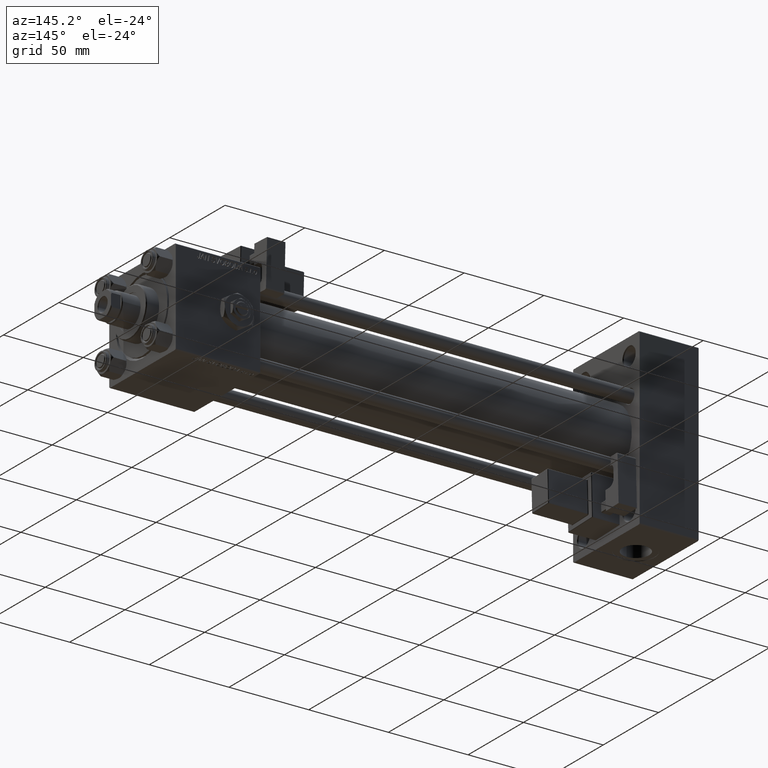
[diagram: clean part render]
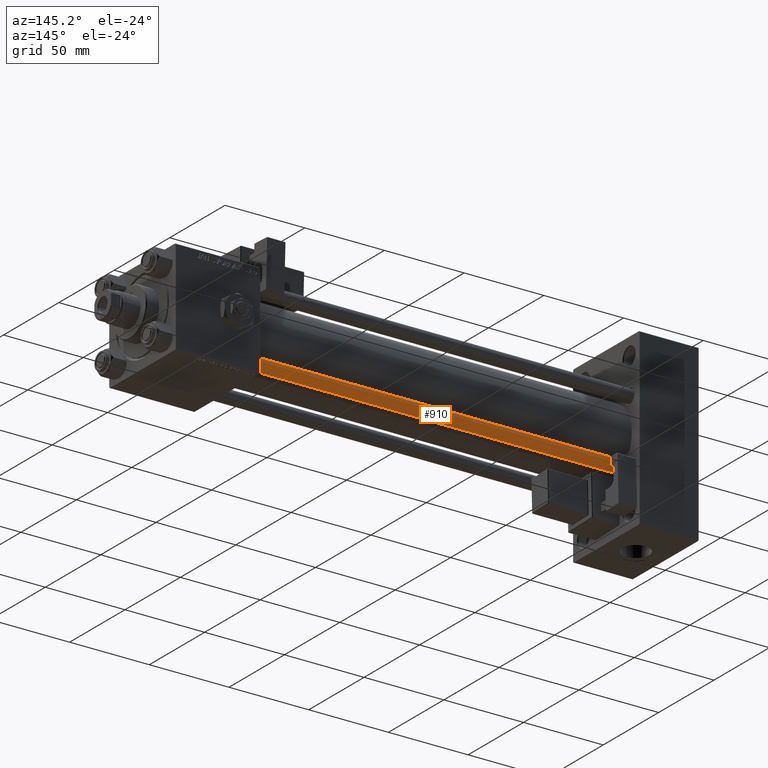
[diagram: same view with one face highlighted and labeled with its STEP entity id]
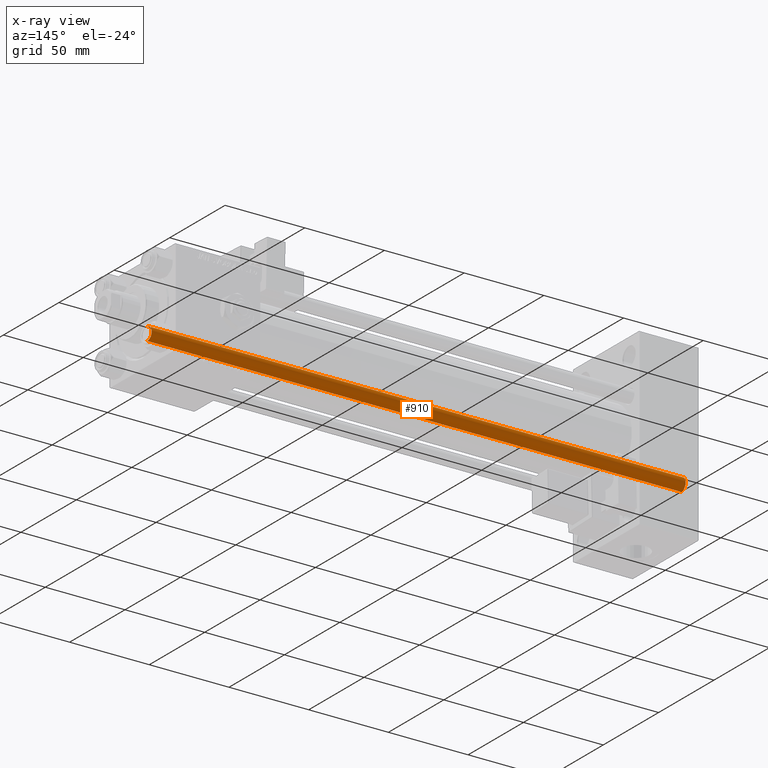
[diagram: x-ray of the same camera — body ghosted, the highlighted face saturated]
A machine part, auxiliary view. The second image highlights one B-rep face of the part: STEP entity #910.
The next image is the same camera in x-ray: the body ghosted, the highlighted face saturated — about 0% of this face is hidden behind the body in this view.
In plain terms, the highlighted cylindrical surface (edge-blend (fillet) strip) has radius 4 mm, axis along (-1, 0, 0).
Its self-contained STEP definition (entity closure, byte-faithful):
#440 = DIRECTION ( 'NONE',  ( -0.000000000000000000, -0.000000000000000000, -1.000000000000000000 ) ) ;
#910 = ADVANCED_FACE ( 'NONE', ( #52350 ), #49873, .T. ) ;
#4340 = EDGE_CURVE ( 'NONE', #36405, #35872, #12436, .T. ) ;
#4458 = CARTESIAN_POINT ( 'NONE',  ( 4.000000000000000000, 4.898587196589411843E-16, 0.5000000000003335110 ) ) ;
#4763 = DIRECTION ( 'NONE',  ( -0.000000000000000000, -0.000000000000000000, -1.000000000000000000 ) ) ;
#5082 = LINE ( 'NONE', #25329, #27484 ) ;
#7553 = DIRECTION ( 'NONE',  ( 1.000000000000000000, 0.000000000000000000, 0.000000000000000000 ) ) ;
#8058 = EDGE_CURVE ( 'NONE', #18956, #29649, #5082, .T. ) ;
#9114 = CARTESIAN_POINT ( 'NONE',  ( -4.000000000000000000, 0.000000000000000000, 336.0000000000000000 ) ) ;
#9689 = CARTESIAN_POINT ( 'NONE',  ( -4.000000000000000000, 0.000000000000000000, 0.5000000000003335110 ) ) ;
#10910 = CARTESIAN_POINT ( 'NONE',  ( -4.000000000000000000, 0.000000000000000000, 335.5000000000001705 ) ) ;
#12343 = EDGE_LOOP ( 'NONE', ( #15547, #47040, #47816, #36677 ) ) ;
#12423 = EDGE_CURVE ( 'NONE', #18956, #36405, #24893, .T. ) ;
#12436 = LINE ( 'NONE', #9114, #23188 ) ;
#12734 = CARTESIAN_POINT ( 'NONE',  ( 0.000000000000000000, 0.000000000000000000, 336.0000000000000000 ) ) ;
#15214 = CARTESIAN_POINT ( 'NONE',  ( 0.000000000000000000, 0.000000000000000000, 335.5000000000001705 ) ) ;
#15547 = ORIENTED_EDGE ( 'NONE', *, *, #8058, .F. ) ;
#16594 = DIRECTION ( 'NONE',  ( -0.000000000000000000, -0.000000000000000000, -1.000000000000000000 ) ) ;
#18956 = VERTEX_POINT ( 'NONE', #46570 ) ;
#23188 = VECTOR ( 'NONE', #4763, 1000.000000000000000 ) ;
#23962 = DIRECTION ( 'NONE',  ( -0.000000000000000000, -0.000000000000000000, 1.000000000000000000 ) ) ;
#24893 = CIRCLE ( 'NONE', #34496, 4.000000000000000000 ) ;
#25329 = CARTESIAN_POINT ( 'NONE',  ( 4.000000000000000000, 4.898587196589411843E-16, 336.0000000000000000 ) ) ;
#27484 = VECTOR ( 'NONE', #16594, 1000.000000000000000 ) ;
#27797 = DIRECTION ( 'NONE',  ( 0.000000000000000000, 0.000000000000000000, -1.000000000000000000 ) ) ;
#29438 = EDGE_CURVE ( 'NONE', #35872, #29649, #46341, .T. ) ;
#29649 = VERTEX_POINT ( 'NONE', #4458 ) ;
#32706 = CARTESIAN_POINT ( 'NONE',  ( 0.000000000000000000, 0.000000000000000000, 0.5000000000003335110 ) ) ;
#34496 = AXIS2_PLACEMENT_3D ( 'NONE', #15214, #27797, #48516 ) ;
#35872 = VERTEX_POINT ( 'NONE', #9689 ) ;
#36405 = VERTEX_POINT ( 'NONE', #10910 ) ;
#36677 = ORIENTED_EDGE ( 'NONE', *, *, #29438, .T. ) ;
#42871 = AXIS2_PLACEMENT_3D ( 'NONE', #32706, #23962, #7553 ) ;
#46341 = CIRCLE ( 'NONE', #42871, 4.000000000000000000 ) ;
#46570 = CARTESIAN_POINT ( 'NONE',  ( 4.000000000000000000, 4.898587196589411843E-16, 335.5000000000001705 ) ) ;
#46592 = AXIS2_PLACEMENT_3D ( 'NONE', #12734, #440, #53703 ) ;
#47040 = ORIENTED_EDGE ( 'NONE', *, *, #12423, .T. ) ;
#47816 = ORIENTED_EDGE ( 'NONE', *, *, #4340, .T. ) ;
#48516 = DIRECTION ( 'NONE',  ( 1.000000000000000000, 0.000000000000000000, 0.000000000000000000 ) ) ;
#49873 = CYLINDRICAL_SURFACE ( 'NONE', #46592, 4.000000000000000000 ) ;
#52350 = FACE_OUTER_BOUND ( 'NONE', #12343, .T. ) ;
#53703 = DIRECTION ( 'NONE',  ( -1.000000000000000000, 0.000000000000000000, 0.000000000000000000 ) ) ;